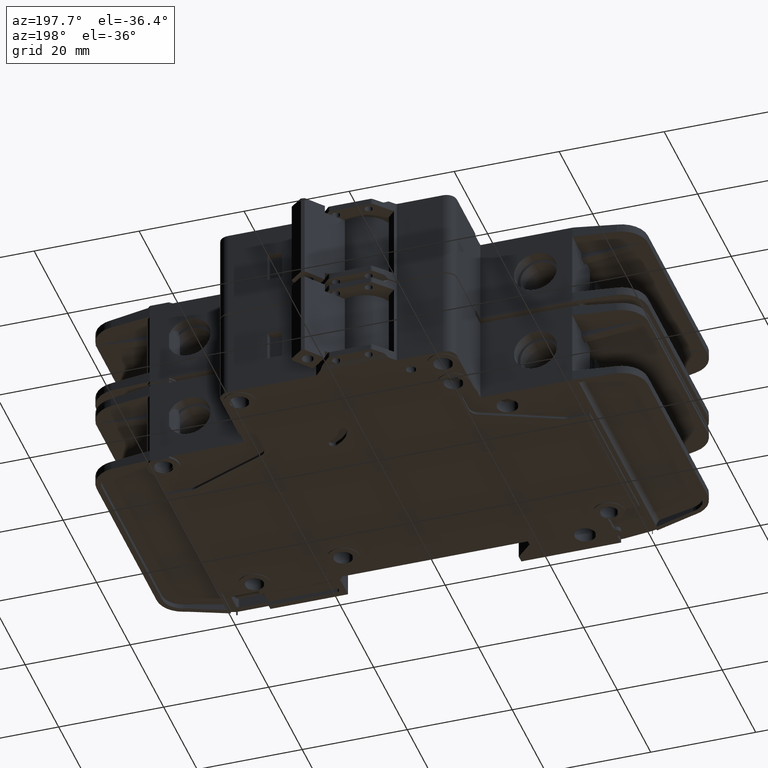
[diagram: clean part render]
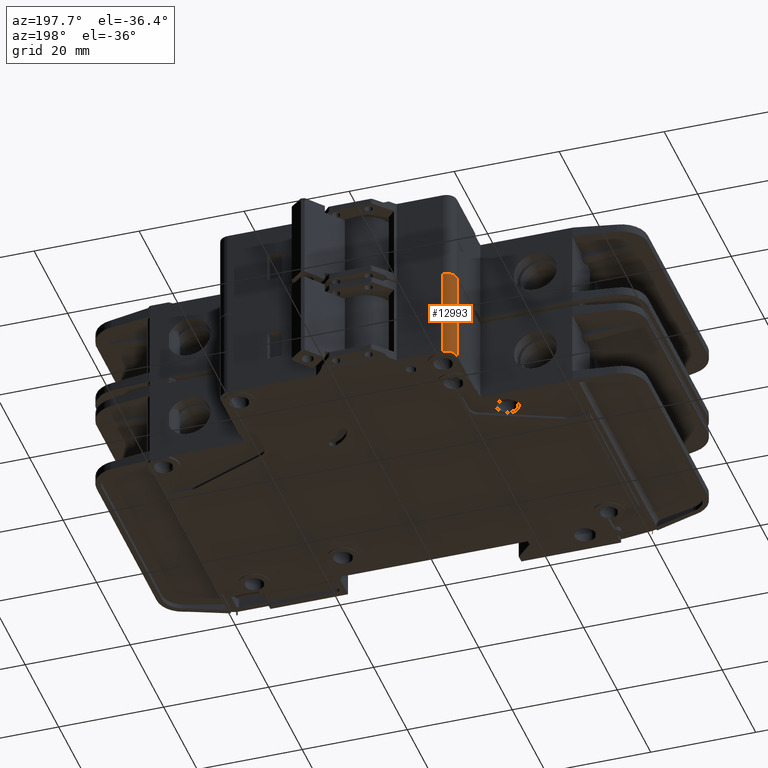
[diagram: same view with one face highlighted and labeled with its STEP entity id]
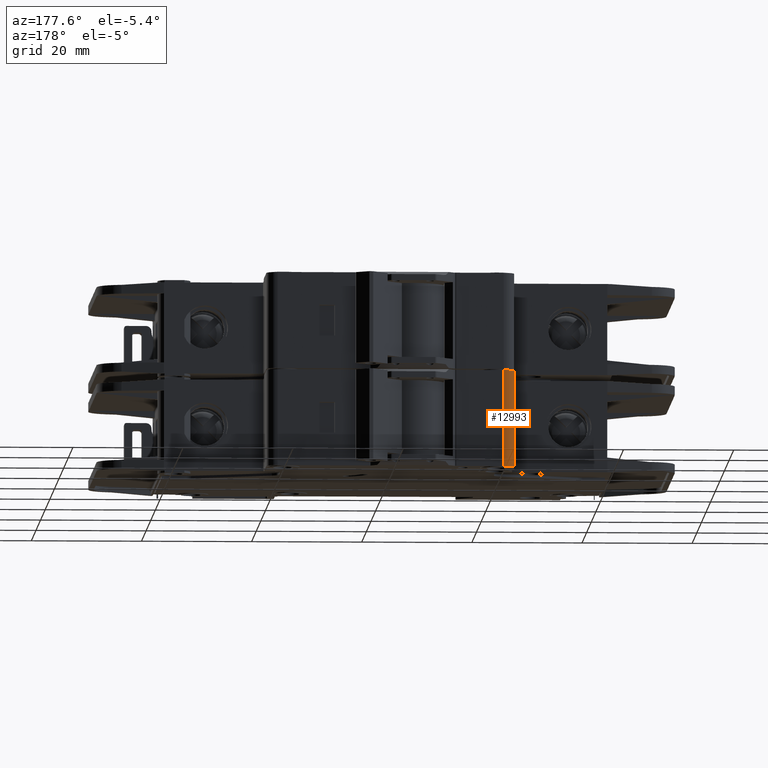
[diagram: same view with one face highlighted and labeled with its STEP entity id]
A machine part, auxiliary view. The second image highlights one B-rep face of the part: STEP entity #12993.
A second angle (auxiliary view) of the same face is appended — the face is thin or edge-on in the first view.
In plain terms, the highlighted cylindrical surface (edge-blend (fillet) strip) has radius 2 mm, axis along (-0, -0, -1).
Its self-contained STEP definition (entity closure, byte-faithful):
#2476 = CARTESIAN_POINT ( 'NONE',  ( 17.49999999999999600, 63.50000000000330400, -8.949999999999999300 ) ) ;
#3951 = VERTEX_POINT ( 'NONE', #5902 ) ;
#5468 = DIRECTION ( 'NONE',  ( -0.0000000000000000000, 0.0000000000000000000, 1.000000000000000000 ) ) ;
#5902 = CARTESIAN_POINT ( 'NONE',  ( 19.49999999999999600, 65.50000000000331100, -26.45000000000000300 ) ) ;
#7078 = EDGE_CURVE ( 'NONE', #3951, #23102, #23524, .T. ) ;
#7916 = VECTOR ( 'NONE', #36589, 1000.000000000000000 ) ;
#10530 = ORIENTED_EDGE ( 'NONE', *, *, #26195, .T. ) ;
#11129 = CYLINDRICAL_SURFACE ( 'NONE', #16730, 2.000000000000001800 ) ;
#12993 = ADVANCED_FACE ( 'NONE', ( #31325 ), #11129, .T. ) ;
#14809 = CARTESIAN_POINT ( 'NONE',  ( 17.49999999999999600, 63.50000000000330400, -8.949999999999999300 ) ) ;
#16730 = AXIS2_PLACEMENT_3D ( 'NONE', #23982, #46742, #42932 ) ;
#18132 = AXIS2_PLACEMENT_3D ( 'NONE', #28175, #5468, #31958 ) ;
#18382 = ORIENTED_EDGE ( 'NONE', *, *, #7078, .T. ) ;
#20107 = CARTESIAN_POINT ( 'NONE',  ( 19.49999999999999600, 63.50000000000330400, -8.949999999999999300 ) ) ;
#20319 = LINE ( 'NONE', #2476, #7916 ) ;
#20920 = VECTOR ( 'NONE', #48088, 1000.000000000000000 ) ;
#21317 = CARTESIAN_POINT ( 'NONE',  ( 19.49999999999999600, 65.50000000000331100, -8.949999999999999300 ) ) ;
#23102 = VERTEX_POINT ( 'NONE', #33274 ) ;
#23138 = ORIENTED_EDGE ( 'NONE', *, *, #38520, .F. ) ;
#23524 = CIRCLE ( 'NONE', #18132, 2.000000000000001800 ) ;
#23980 = DIRECTION ( 'NONE',  ( 1.000000000000000000, 0.0000000000000000000, 0.0000000000000000000 ) ) ;
#23982 = CARTESIAN_POINT ( 'NONE',  ( 19.49999999999999600, 63.50000000000330400, -8.949999999999999300 ) ) ;
#26195 = EDGE_CURVE ( 'NONE', #47411, #3951, #31059, .T. ) ;
#28175 = CARTESIAN_POINT ( 'NONE',  ( 19.49999999999999600, 63.50000000000330400, -26.45000000000000300 ) ) ;
#31059 = LINE ( 'NONE', #21317, #20920 ) ;
#31325 = FACE_OUTER_BOUND ( 'NONE', #46359, .T. ) ;
#31958 = DIRECTION ( 'NONE',  ( 1.000000000000000000, 0.0000000000000000000, 0.0000000000000000000 ) ) ;
#33121 = AXIS2_PLACEMENT_3D ( 'NONE', #20107, #46740, #23980 ) ;
#33274 = CARTESIAN_POINT ( 'NONE',  ( 17.49999999999999600, 63.50000000000330400, -26.45000000000000300 ) ) ;
#36589 = DIRECTION ( 'NONE',  ( -0.0000000000000000000, -0.0000000000000000000, -1.000000000000000000 ) ) ;
#38300 = EDGE_CURVE ( 'NONE', #47411, #38622, #48886, .T. ) ;
#38520 = EDGE_CURVE ( 'NONE', #38622, #23102, #20319, .T. ) ;
#38622 = VERTEX_POINT ( 'NONE', #14809 ) ;
#41187 = CARTESIAN_POINT ( 'NONE',  ( 19.49999999999999600, 65.50000000000331100, -8.949999999999999300 ) ) ;
#41290 = ORIENTED_EDGE ( 'NONE', *, *, #38300, .F. ) ;
#42932 = DIRECTION ( 'NONE',  ( -1.000000000000000000, 0.0000000000000000000, 0.0000000000000000000 ) ) ;
#46359 = EDGE_LOOP ( 'NONE', ( #18382, #23138, #41290, #10530 ) ) ;
#46740 = DIRECTION ( 'NONE',  ( -0.0000000000000000000, 0.0000000000000000000, 1.000000000000000000 ) ) ;
#46742 = DIRECTION ( 'NONE',  ( -0.0000000000000000000, -0.0000000000000000000, -1.000000000000000000 ) ) ;
#47411 = VERTEX_POINT ( 'NONE', #41187 ) ;
#48088 = DIRECTION ( 'NONE',  ( -0.0000000000000000000, -0.0000000000000000000, -1.000000000000000000 ) ) ;
#48886 = CIRCLE ( 'NONE', #33121, 2.000000000000001800 ) ;